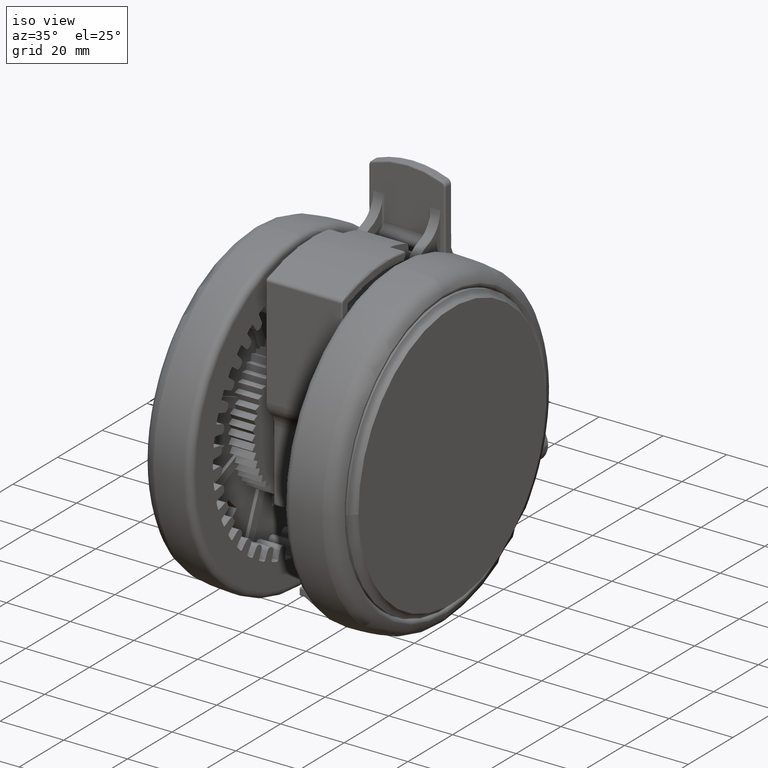
[diagram: clean part render]
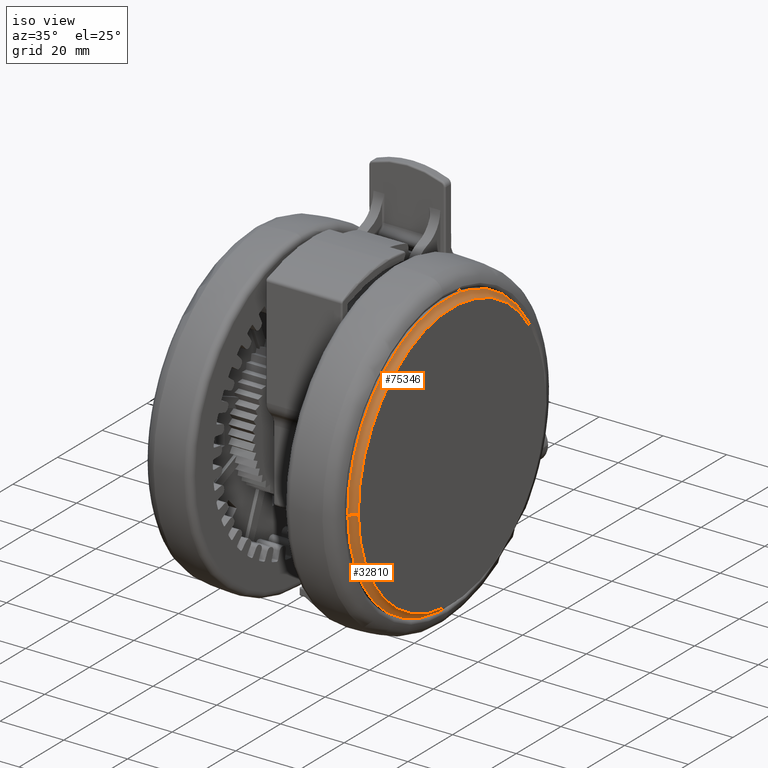
[diagram: same view with one multi-face feature highlighted, each face labeled with its STEP entity id]
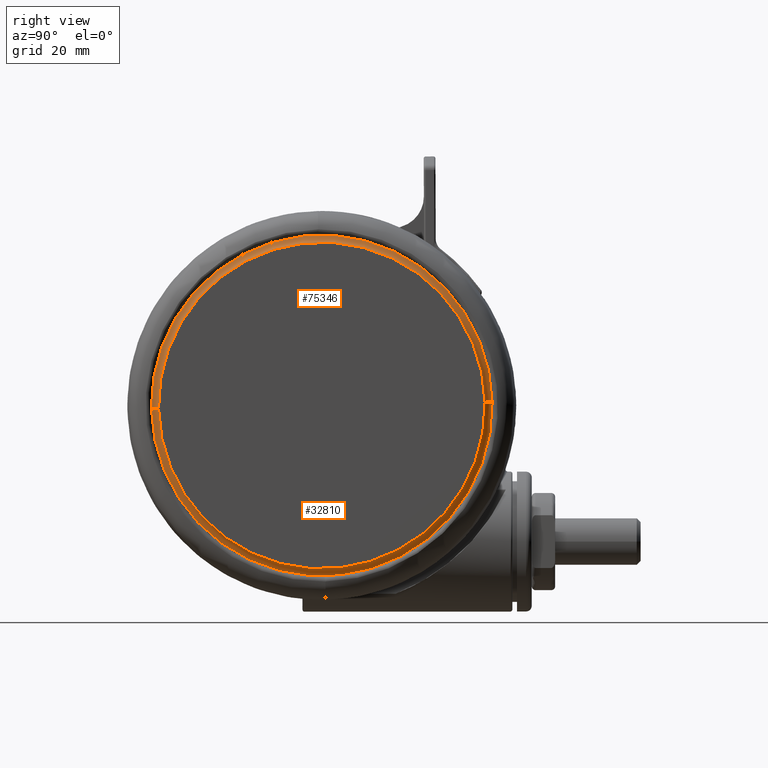
[diagram: same view with one multi-face feature highlighted, each face labeled with its STEP entity id]
A machine part, iso view. The highlighted faces form ONE feature: a constant-radius fillet chain: 2 tangent blend faces with common blend radius 2.0507 mm. The faces share edges in the B-rep.
A second angle (right view) of the same feature is appended — it is thin or edge-on in the first view.
Their STEP definitions:
[1] entity #75346 (Torus):
#1557 = FACE_OUTER_BOUND ( 'NONE', #37611, .T. ) ;
#8502 = CARTESIAN_POINT ( 'NONE',  ( 0.0000000000000000000, 0.0000000000000000000, -2.091591727423864900 ) ) ;
#12050 = AXIS2_PLACEMENT_3D ( 'NONE', #53847, #16028, #60241 ) ;
#13708 = ORIENTED_EDGE ( 'NONE', *, *, #54684, .T. ) ;
#14644 = DIRECTION ( 'NONE',  ( 0.0000000000000000000, 0.0000000000000000000, 1.000000000000000000 ) ) ;
#14839 = DIRECTION ( 'NONE',  ( 1.000000000000000000, 0.0000000000000000000, 0.0000000000000000000 ) ) ;
#15535 = CARTESIAN_POINT ( 'NONE',  ( -43.81162395316311400, 5.365376503968872300E-015, -2.091591727423864900 ) ) ;
#16028 = DIRECTION ( 'NONE',  ( 0.0000000000000000000, 0.0000000000000000000, 1.000000000000000000 ) ) ;
#17276 = CARTESIAN_POINT ( 'NONE',  ( -44.04999999999999700, 5.394569150244090700E-015, -0.05476190476190339500 ) ) ;
#17496 = VERTEX_POINT ( 'NONE', #15535 ) ;
#20189 = CIRCLE ( 'NONE', #12050, 41.99926869965538100 ) ;
#20360 = EDGE_CURVE ( 'NONE', #64893, #64688, #79569, .T. ) ;
#23014 = CIRCLE ( 'NONE', #60383, 2.050731300344617500 ) ;
#23686 = DIRECTION ( 'NONE',  ( -1.000000000000000000, 1.224646799147356900E-016, 0.0000000000000000000 ) ) ;
#29746 = CARTESIAN_POINT ( 'NONE',  ( -41.99926869965538100, 5.143426997956257600E-015, -0.05476190476190365100 ) ) ;
#30192 = DIRECTION ( 'NONE',  ( 0.0000000000000000000, -1.000000000000000000, 0.0000000000000000000 ) ) ;
#30952 = AXIS2_PLACEMENT_3D ( 'NONE', #64923, #14644, #65188 ) ;
#31938 = VERTEX_POINT ( 'NONE', #29746 ) ;
#33259 = TOROIDAL_SURFACE ( 'NONE', #30952, 44.04999999999999700, 2.050731300344620100 ) ;
#35058 = ORIENTED_EDGE ( 'NONE', *, *, #61364, .F. ) ;
#35274 = ORIENTED_EDGE ( 'NONE', *, *, #39058, .T. ) ;
#35401 = CARTESIAN_POINT ( 'NONE',  ( 41.99926869965538100, 0.0000000000000000000, -0.05476190476190365100 ) ) ;
#37611 = EDGE_LOOP ( 'NONE', ( #35058, #13708, #35274, #52559 ) ) ;
#39058 = EDGE_CURVE ( 'NONE', #17496, #64688, #51920, .T. ) ;
#51920 = CIRCLE ( 'NONE', #55624, 43.81162395321010200 ) ;
#52559 = ORIENTED_EDGE ( 'NONE', *, *, #20360, .F. ) ;
#52637 = DIRECTION ( 'NONE',  ( 0.0000000000000000000, 0.0000000000000000000, 1.000000000000000000 ) ) ;
#53847 = CARTESIAN_POINT ( 'NONE',  ( 0.0000000000000000000, 0.0000000000000000000, -0.05476190476190365100 ) ) ;
#54684 = EDGE_CURVE ( 'NONE', #31938, #17496, #23014, .T. ) ;
#55624 = AXIS2_PLACEMENT_3D ( 'NONE', #8502, #52637, #14839 ) ;
#60241 = DIRECTION ( 'NONE',  ( 1.000000000000000000, 0.0000000000000000000, 0.0000000000000000000 ) ) ;
#60383 = AXIS2_PLACEMENT_3D ( 'NONE', #17276, #61471, #23686 ) ;
#61364 = EDGE_CURVE ( 'NONE', #31938, #64893, #20189, .T. ) ;
#61471 = DIRECTION ( 'NONE',  ( 1.224646799147353200E-016, 1.000000000000000000, -0.0000000000000000000 ) ) ;
#63854 = CARTESIAN_POINT ( 'NONE',  ( 43.81162395316311400, 0.0000000000000000000, -2.091591727423864900 ) ) ;
#64688 = VERTEX_POINT ( 'NONE', #63854 ) ;
#64893 = VERTEX_POINT ( 'NONE', #35401 ) ;
#64923 = CARTESIAN_POINT ( 'NONE',  ( 0.0000000000000000000, 0.0000000000000000000, -0.05476190476190339500 ) ) ;
#65188 = DIRECTION ( 'NONE',  ( 1.000000000000000000, 0.0000000000000000000, 0.0000000000000000000 ) ) ;
#67991 = CARTESIAN_POINT ( 'NONE',  ( 44.04999999999999700, 0.0000000000000000000, -0.05476190476190339500 ) ) ;
#74318 = DIRECTION ( 'NONE',  ( 0.0000000000000000000, 0.0000000000000000000, -1.000000000000000000 ) ) ;
#74667 = AXIS2_PLACEMENT_3D ( 'NONE', #67991, #30192, #74318 ) ;
#75346 = ADVANCED_FACE ( 'NONE', ( #1557 ), #33259, .F. ) ;
#79569 = CIRCLE ( 'NONE', #74667, 2.050731300344620100 ) ;
[2] entity #32810 (Torus):
#1869 = AXIS2_PLACEMENT_3D ( 'NONE', #27192, #71367, #33565 ) ;
#2422 = DIRECTION ( 'NONE',  ( 1.000000000000000000, 0.0000000000000000000, 0.0000000000000000000 ) ) ;
#9419 = FACE_OUTER_BOUND ( 'NONE', #74800, .T. ) ;
#10334 = AXIS2_PLACEMENT_3D ( 'NONE', #34268, #65720, #2422 ) ;
#11373 = TOROIDAL_SURFACE ( 'NONE', #10334, 44.04999999999999700, 2.050731300344620100 ) ;
#15535 = CARTESIAN_POINT ( 'NONE',  ( -43.81162395316311400, 5.365376503968872300E-015, -2.091591727423864900 ) ) ;
#17276 = CARTESIAN_POINT ( 'NONE',  ( -44.04999999999999700, 5.394569150244090700E-015, -0.05476190476190339500 ) ) ;
#17496 = VERTEX_POINT ( 'NONE', #15535 ) ;
#20360 = EDGE_CURVE ( 'NONE', #64893, #64688, #79569, .T. ) ;
#21751 = CIRCLE ( 'NONE', #58925, 43.81162395321010200 ) ;
#23014 = CIRCLE ( 'NONE', #60383, 2.050731300344617500 ) ;
#23489 = CIRCLE ( 'NONE', #1869, 41.99926869965538100 ) ;
#23686 = DIRECTION ( 'NONE',  ( -1.000000000000000000, 1.224646799147356900E-016, 0.0000000000000000000 ) ) ;
#27192 = CARTESIAN_POINT ( 'NONE',  ( 0.0000000000000000000, 0.0000000000000000000, -0.05476190476190365100 ) ) ;
#29746 = CARTESIAN_POINT ( 'NONE',  ( -41.99926869965538100, 5.143426997956257600E-015, -0.05476190476190365100 ) ) ;
#30192 = DIRECTION ( 'NONE',  ( 0.0000000000000000000, -1.000000000000000000, 0.0000000000000000000 ) ) ;
#31938 = VERTEX_POINT ( 'NONE', #29746 ) ;
#32810 = ADVANCED_FACE ( 'NONE', ( #9419 ), #11373, .F. ) ;
#33193 = CARTESIAN_POINT ( 'NONE',  ( 0.0000000000000000000, 0.0000000000000000000, -2.091591727423864900 ) ) ;
#33565 = DIRECTION ( 'NONE',  ( 1.000000000000000000, 0.0000000000000000000, 0.0000000000000000000 ) ) ;
#34268 = CARTESIAN_POINT ( 'NONE',  ( 0.0000000000000000000, 0.0000000000000000000, -0.05476190476190339500 ) ) ;
#35401 = CARTESIAN_POINT ( 'NONE',  ( 41.99926869965538100, 0.0000000000000000000, -0.05476190476190365100 ) ) ;
#43274 = EDGE_CURVE ( 'NONE', #64893, #31938, #23489, .T. ) ;
#43708 = DIRECTION ( 'NONE',  ( 1.000000000000000000, 0.0000000000000000000, 0.0000000000000000000 ) ) ;
#44039 = ORIENTED_EDGE ( 'NONE', *, *, #20360, .T. ) ;
#48523 = EDGE_CURVE ( 'NONE', #64688, #17496, #21751, .T. ) ;
#54684 = EDGE_CURVE ( 'NONE', #31938, #17496, #23014, .T. ) ;
#58925 = AXIS2_PLACEMENT_3D ( 'NONE', #33193, #81466, #43708 ) ;
#60383 = AXIS2_PLACEMENT_3D ( 'NONE', #17276, #61471, #23686 ) ;
#60846 = ORIENTED_EDGE ( 'NONE', *, *, #43274, .F. ) ;
#61471 = DIRECTION ( 'NONE',  ( 1.224646799147353200E-016, 1.000000000000000000, -0.0000000000000000000 ) ) ;
#63854 = CARTESIAN_POINT ( 'NONE',  ( 43.81162395316311400, 0.0000000000000000000, -2.091591727423864900 ) ) ;
#64688 = VERTEX_POINT ( 'NONE', #63854 ) ;
#64893 = VERTEX_POINT ( 'NONE', #35401 ) ;
#65720 = DIRECTION ( 'NONE',  ( 0.0000000000000000000, 0.0000000000000000000, 1.000000000000000000 ) ) ;
#67991 = CARTESIAN_POINT ( 'NONE',  ( 44.04999999999999700, 0.0000000000000000000, -0.05476190476190339500 ) ) ;
#71367 = DIRECTION ( 'NONE',  ( 0.0000000000000000000, 0.0000000000000000000, 1.000000000000000000 ) ) ;
#72221 = ORIENTED_EDGE ( 'NONE', *, *, #48523, .T. ) ;
#74318 = DIRECTION ( 'NONE',  ( 0.0000000000000000000, 0.0000000000000000000, -1.000000000000000000 ) ) ;
#74667 = AXIS2_PLACEMENT_3D ( 'NONE', #67991, #30192, #74318 ) ;
#74800 = EDGE_LOOP ( 'NONE', ( #60846, #44039, #72221, #76948 ) ) ;
#76948 = ORIENTED_EDGE ( 'NONE', *, *, #54684, .F. ) ;
#79569 = CIRCLE ( 'NONE', #74667, 2.050731300344620100 ) ;
#81466 = DIRECTION ( 'NONE',  ( 0.0000000000000000000, 0.0000000000000000000, 1.000000000000000000 ) ) ;